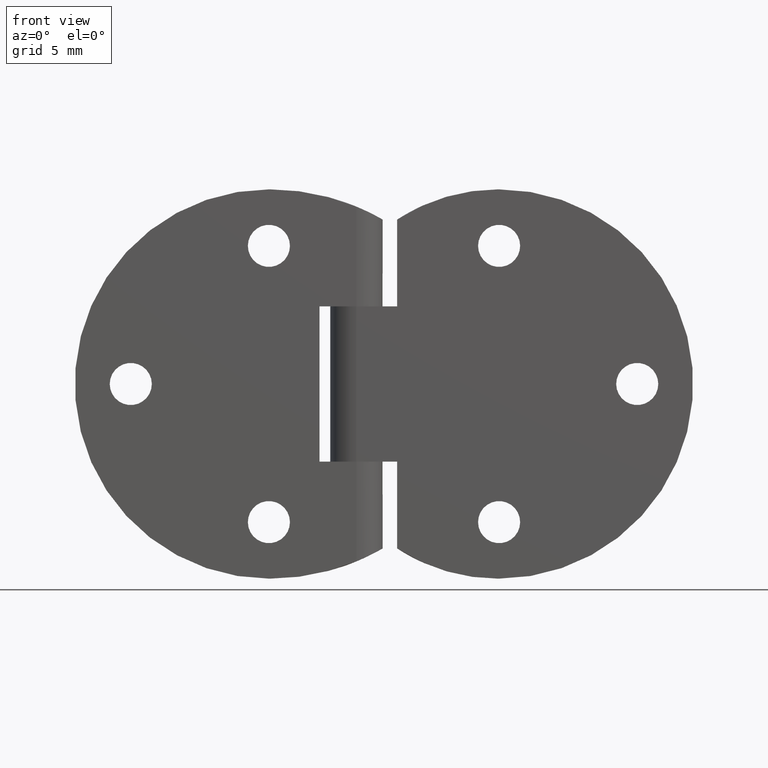
[diagram: clean part render]
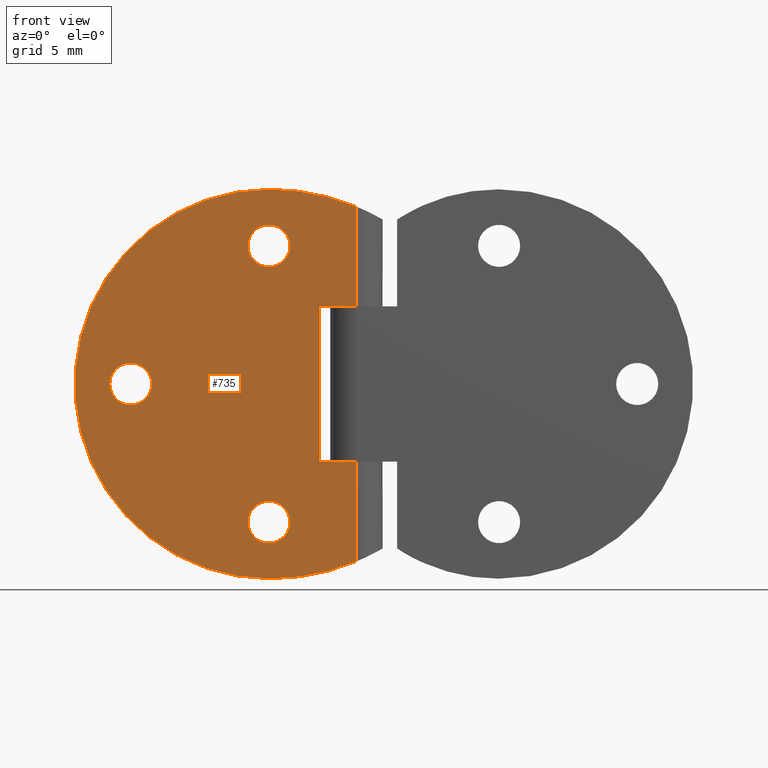
[diagram: same view with one face highlighted and labeled with its STEP entity id]
A machine part, front view. The second image highlights one B-rep face of the part: STEP entity #735.
In plain terms, the highlighted planar face has unit normal (0, -1, 0).
Its self-contained STEP definition (entity closure, byte-faithful):
#79=FACE_BOUND('',#232,.T.);
#80=FACE_BOUND('',#233,.T.);
#81=FACE_BOUND('',#234,.T.);
#111=CIRCLE('',#779,1.6);
#114=CIRCLE('',#784,1.6);
#117=CIRCLE('',#789,1.6);
#123=CIRCLE('',#801,17.2282608695652);
#124=CIRCLE('',#802,14.8);
#125=CIRCLE('',#803,17.2282608695652);
#174=FACE_OUTER_BOUND('',#231,.T.);
#231=EDGE_LOOP('',(#564,#565,#566,#567,#568,#569,#570,#571));
#232=EDGE_LOOP('',(#572));
#233=EDGE_LOOP('',(#573));
#234=EDGE_LOOP('',(#574));
#300=LINE('',#1129,#337);
#302=LINE('',#1187,#339);
#304=LINE('',#1192,#341);
#306=LINE('',#1204,#343);
#307=LINE('',#1205,#344);
#337=VECTOR('',#885,11.8);
#339=VECTOR('',#931,7.5856629894267);
#341=VECTOR('',#937,2.79999999999999);
#343=VECTOR('',#949,7.5856629894267);
#344=VECTOR('',#950,2.79999999999999);
#373=VERTEX_POINT('',#1126);
#374=VERTEX_POINT('',#1128);
#377=VERTEX_POINT('',#1137);
#380=VERTEX_POINT('',#1145);
#383=VERTEX_POINT('',#1153);
#388=VERTEX_POINT('',#1166);
#389=VERTEX_POINT('',#1186);
#392=VERTEX_POINT('',#1197);
#393=VERTEX_POINT('',#1199);
#394=VERTEX_POINT('',#1201);
#395=VERTEX_POINT('',#1203);
#444=EDGE_CURVE('',#374,#373,#300,.T.);
#448=EDGE_CURVE('',#377,#377,#111,.T.);
#451=EDGE_CURVE('',#380,#380,#114,.T.);
#454=EDGE_CURVE('',#383,#383,#117,.T.);
#459=EDGE_CURVE('',#388,#389,#302,.T.);
#462=EDGE_CURVE('',#373,#389,#304,.T.);
#465=EDGE_CURVE('',#388,#392,#123,.T.);
#466=EDGE_CURVE('',#392,#393,#124,.T.);
#467=EDGE_CURVE('',#393,#394,#125,.T.);
#468=EDGE_CURVE('',#395,#394,#306,.T.);
#469=EDGE_CURVE('',#395,#374,#307,.T.);
#564=ORIENTED_EDGE('',*,*,#459,.F.);
#565=ORIENTED_EDGE('',*,*,#465,.T.);
#566=ORIENTED_EDGE('',*,*,#466,.T.);
#567=ORIENTED_EDGE('',*,*,#467,.T.);
#568=ORIENTED_EDGE('',*,*,#468,.F.);
#569=ORIENTED_EDGE('',*,*,#469,.T.);
#570=ORIENTED_EDGE('',*,*,#444,.T.);
#571=ORIENTED_EDGE('',*,*,#462,.T.);
#572=ORIENTED_EDGE('',*,*,#448,.T.);
#573=ORIENTED_EDGE('',*,*,#451,.T.);
#574=ORIENTED_EDGE('',*,*,#454,.T.);
#709=PLANE('',#800);
#735=ADVANCED_FACE('',(#174,#79,#80,#81),#709,.T.);
#779=AXIS2_PLACEMENT_3D('',#1138,#895,#896);
#784=AXIS2_PLACEMENT_3D('',#1146,#905,#906);
#789=AXIS2_PLACEMENT_3D('',#1154,#915,#916);
#800=AXIS2_PLACEMENT_3D('',#1196,#941,#942);
#801=AXIS2_PLACEMENT_3D('',#1198,#943,#944);
#802=AXIS2_PLACEMENT_3D('',#1200,#945,#946);
#803=AXIS2_PLACEMENT_3D('',#1202,#947,#948);
#885=DIRECTION('',(7.50150692314295E-17,0.,1.));
#895=DIRECTION('center_axis',(0.,1.,0.));
#896=DIRECTION('ref_axis',(1.,0.,0.));
#905=DIRECTION('center_axis',(0.,1.,0.));
#906=DIRECTION('ref_axis',(1.,0.,0.));
#915=DIRECTION('center_axis',(0.,1.,0.));
#916=DIRECTION('ref_axis',(1.,0.,0.));
#931=DIRECTION('',(0.,0.,-1.));
#937=DIRECTION('',(1.,0.,-7.50150692314295E-17));
#941=DIRECTION('center_axis',(0.,-1.,0.));
#942=DIRECTION('ref_axis',(1.,0.,0.));
#943=DIRECTION('center_axis',(0.,-1.,0.));
#944=DIRECTION('ref_axis',(-2.57767869439784E-16,0.,-1.));
#945=DIRECTION('center_axis',(0.,-1.,0.));
#946=DIRECTION('ref_axis',(0.,0.,1.));
#947=DIRECTION('center_axis',(0.,-1.,0.));
#948=DIRECTION('ref_axis',(-0.499179810725553,0.,0.866498422712933));
#949=DIRECTION('',(0.,0.,-1.));
#950=DIRECTION('',(-1.,0.,7.50150692314295E-17));
#1126=CARTESIAN_POINT('',(-2.79999999999999,-2.,5.9));
#1128=CARTESIAN_POINT('',(-2.79999999999999,-2.,-5.9));
#1129=CARTESIAN_POINT('',(-2.79999999999999,-2.,2.95));
#1137=CARTESIAN_POINT('',(-8.24999999999999,-2.,10.5));
#1138=CARTESIAN_POINT('Origin',(-6.65,-2.,10.5));
#1145=CARTESIAN_POINT('',(-18.75,-2.,2.41638953711389E-15));
#1146=CARTESIAN_POINT('Origin',(-17.15,-2.,2.22044604925031E-15));
#1153=CARTESIAN_POINT('',(-8.25,-2.,-10.5));
#1154=CARTESIAN_POINT('Origin',(-6.65,-2.,-10.5));
#1166=CARTESIAN_POINT('',(0.,-2.,13.4856629894267));
#1186=CARTESIAN_POINT('',(0.,-2.,5.9));
#1187=CARTESIAN_POINT('',(0.,-2.,0.));
#1192=CARTESIAN_POINT('',(-9.7,-2.,5.9));
#1196=CARTESIAN_POINT('Origin',(-21.4,-2.,0.));
#1197=CARTESIAN_POINT('',(-6.59999999999999,-2.,14.8));
#1198=CARTESIAN_POINT('Origin',(-6.59999999999999,-2.,-2.42826086956519));
#1199=CARTESIAN_POINT('',(-6.59999999999999,-2.,-14.8));
#1200=CARTESIAN_POINT('Origin',(-6.59999999999999,-2.,-2.22044604925031E-15));
#1201=CARTESIAN_POINT('',(0.,-2.,-13.4856629894267));
#1202=CARTESIAN_POINT('Origin',(-6.59999999999999,-2.,2.42826086956519));
#1203=CARTESIAN_POINT('',(0.,-2.,-5.9));
#1204=CARTESIAN_POINT('',(0.,-2.,0.));
#1205=CARTESIAN_POINT('',(-12.1,-2.,-5.9));